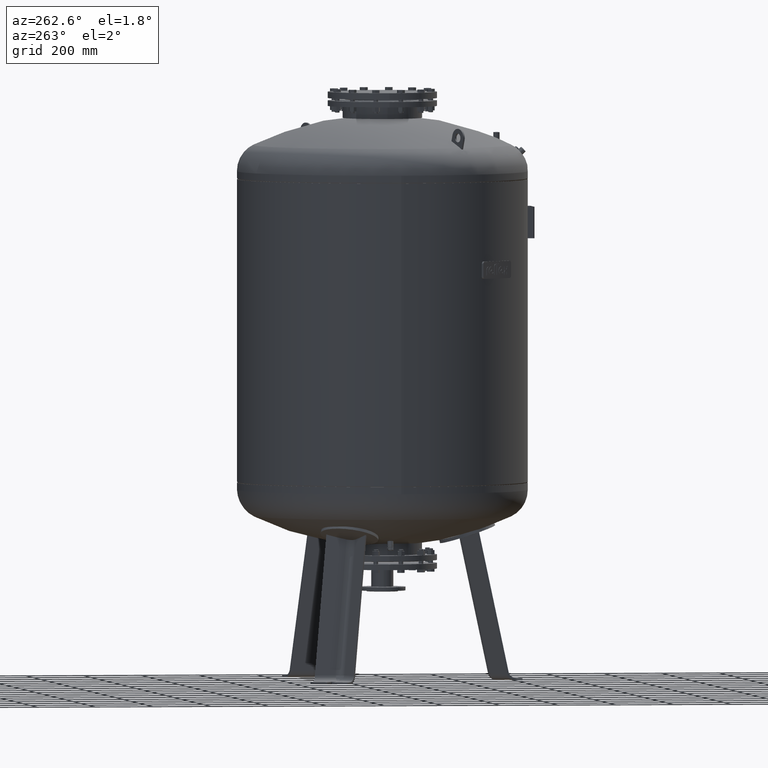
[diagram: clean part render]
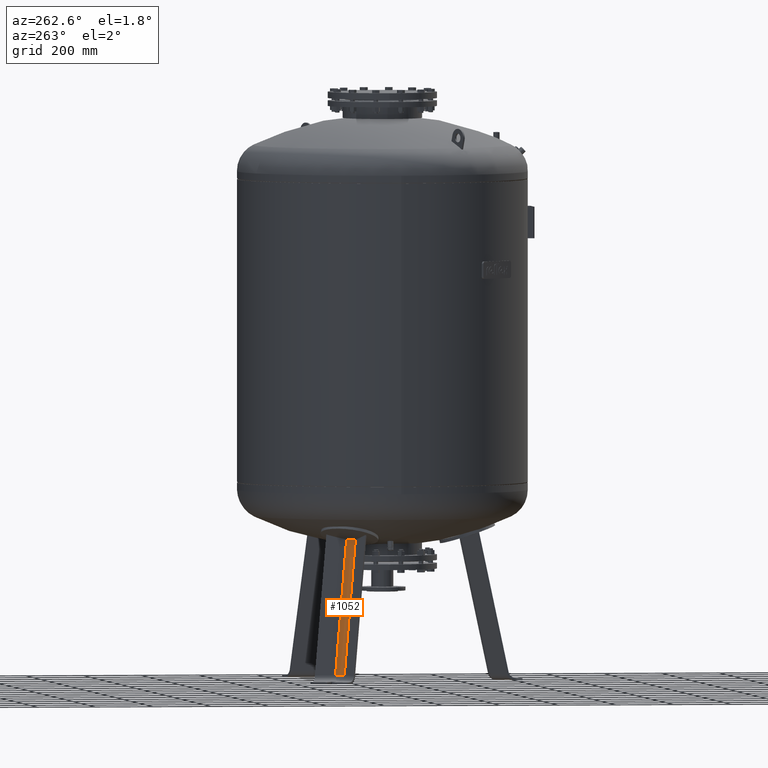
[diagram: same view with one face highlighted and labeled with its STEP entity id]
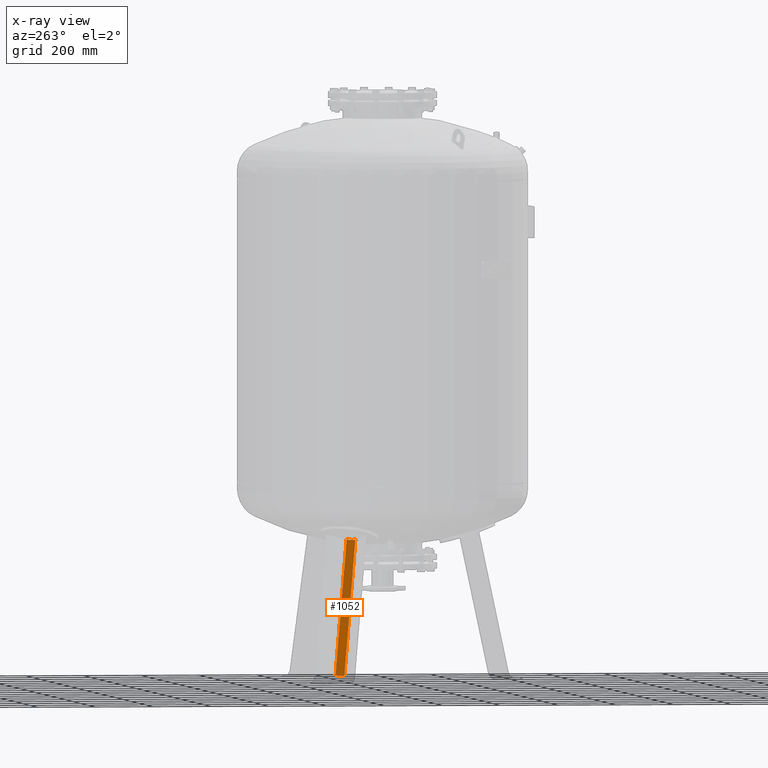
[diagram: x-ray of the same camera — body ghosted, the highlighted face saturated]
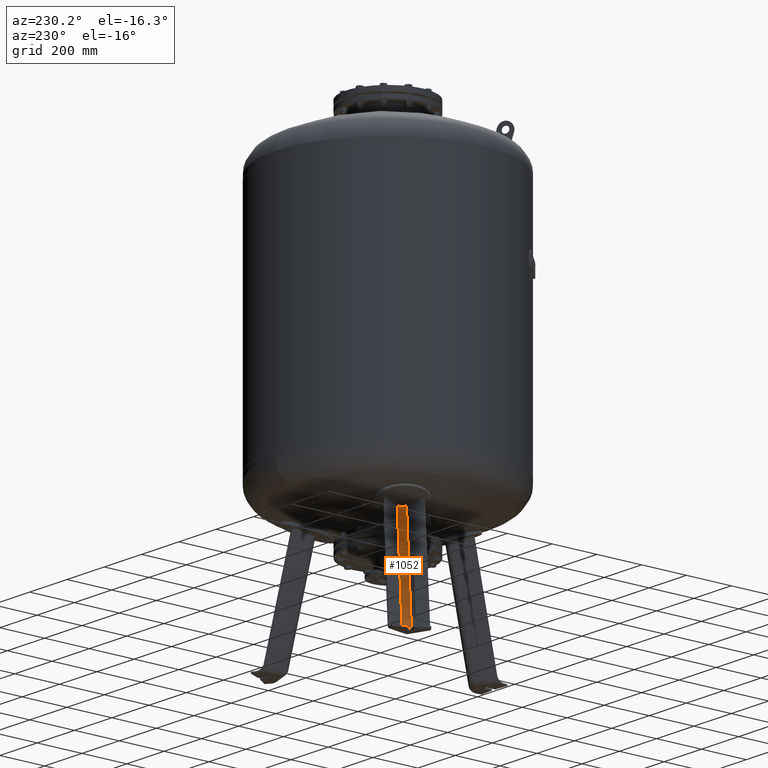
[diagram: same view with one face highlighted and labeled with its STEP entity id]
A machine part, auxiliary view. The second image highlights one B-rep face of the part: STEP entity #1052.
The next image is the same camera in x-ray: the body ghosted, the highlighted face saturated — about 0% of this face is hidden behind the body in this view.
A second angle (auxiliary view) of the same face is appended — the face is thin or edge-on in the first view.
In plain terms, the highlighted cylindrical surface (edge-blend (fillet) strip) has radius 25 mm, axis along (0.1801, -0.104, 0.9781).
Its self-contained STEP definition (entity closure, byte-faithful):
#202=CARTESIAN_POINT('',(-322.896399860520090,186.424323379832520,25.802207729556009));
#203=VERTEX_POINT('',#202);
#213=CARTESIAN_POINT('',(-319.830394192792940,203.286932639186150,27.029948423057292));
#214=VERTEX_POINT('',#213);
#215=CARTESIAN_POINT('',(-344.073916632676910,198.651168389005020,30.999999999999996));
#216=DIRECTION('',(0.180056805991956,-0.103955845408880,0.978147600733806));
#217=DIRECTION('',(0.847100670886274,-0.489073800366903,-0.207911690817760));
#218=AXIS2_PLACEMENT_3D('',#215,#216,#217);
#219=CIRCLE('',#218,24.999999999999996);
#220=EDGE_CURVE('',#203,#214,#219,.T.);
#512=CARTESIAN_POINT('',(-335.966845019347490,175.337779953756860,27.029948423057284));
#513=VERTEX_POINT('',#512);
#602=CARTESIAN_POINT('',(-344.073916632676910,198.651168389005020,30.999999999999996));
#603=DIRECTION('',(0.180056805991956,-0.103955845408880,0.978147600733806));
#604=DIRECTION('',(0.847100670886274,-0.489073800366903,-0.207911690817760));
#605=AXIS2_PLACEMENT_3D('',#602,#603,#604);
#606=CIRCLE('',#605,24.999999999999996);
#607=EDGE_CURVE('',#513,#203,#606,.T.);
#793=CARTESIAN_POINT('',(-234.534818756953200,154.041509200619970,490.392952149244080));
#794=VERTEX_POINT('',#793);
#802=CARTESIAN_POINT('',(-250.671269583507720,126.092356515190720,490.392952149244080));
#803=VERTEX_POINT('',#802);
#804=CARTESIAN_POINT('',(-250.671269583507720,126.092356515190720,490.392952149244080));
#805=CARTESIAN_POINT('',(-250.574512849431670,126.129635010904860,490.371623892671440));
#806=CARTESIAN_POINT('',(-250.477803760298120,126.167593311050540,490.350420493468330));
#807=CARTESIAN_POINT('',(-249.646487369690620,126.499951411326890,490.169148601515130));
#808=CARTESIAN_POINT('',(-248.915641114720190,126.833074850677970,490.016489016976440));
#809=CARTESIAN_POINT('',(-247.476615436054400,127.576101824324410,489.730169035990510));
#810=CARTESIAN_POINT('',(-246.768360453599570,127.986039684162510,489.596492822823280));
#811=CARTESIAN_POINT('',(-245.388021940892060,128.877791467814290,489.351162059827520));
#812=CARTESIAN_POINT('',(-244.715937417979970,129.359603697571540,489.239506937421310));
#813=CARTESIAN_POINT('',(-243.419980240353990,130.387381409492890,489.040364541220580));
#814=CARTESIAN_POINT('',(-242.795522354690630,130.933811219726380,488.952787360993230));
#815=CARTESIAN_POINT('',(-241.604085802151560,132.081845711851540,488.802955942629920));
#816=CARTESIAN_POINT('',(-241.037108603185230,132.683452004905400,488.740702376916890));
#817=CARTESIAN_POINT('',(-239.968940744643450,133.929592684317130,488.641866930361120));
#818=CARTESIAN_POINT('',(-239.467698051638340,134.574194484351320,488.605281330539300));
#819=CARTESIAN_POINT('',(-238.536808190789320,135.892067462273190,488.557093949216380));
#820=CARTESIAN_POINT('',(-238.107165363452170,136.565341769891430,488.545493912186370));
#821=CARTESIAN_POINT('',(-237.714901647204130,137.244762456398800,488.545493912186370));
#822=CARTESIAN_POINT('',(-237.322637930956090,137.924183142906200,488.545493912186370));
#823=CARTESIAN_POINT('',(-236.954386690511880,138.632901899743080,488.557093949216380));
#824=CARTESIAN_POINT('',(-236.278520143095020,140.098012656324640,488.605281330539300));
#825=CARTESIAN_POINT('',(-235.970899955442750,140.854402461945480,488.641866930361120));
#826=CARTESIAN_POINT('',(-235.425794399653880,142.402533302654550,488.740702376916890));
#827=CARTESIAN_POINT('',(-235.188276666275870,143.194353106852840,488.802955942629920));
#828=CARTESIAN_POINT('',(-234.789767907944220,144.800184674411640,488.952787360993230));
#829=CARTESIAN_POINT('',(-234.628774753728610,145.614195972106390,489.040364541220580));
#830=CARTESIAN_POINT('',(-234.386671734574240,147.250416666107920,489.239506937421370));
#831=CARTESIAN_POINT('',(-234.305452365206490,148.073365051318770,489.351162059827520));
#832=CARTESIAN_POINT('',(-234.223341923047710,149.714649160971390,489.596492822823280));
#833=CARTESIAN_POINT('',(-234.222452813682340,150.532984898053170,489.730169035990630));
#834=CARTESIAN_POINT('',(-234.298485418140270,152.150731179299070,490.016489016976440));
#835=CARTESIAN_POINT('',(-234.375415184551600,152.950224322039820,490.169148601515020));
#836=CARTESIAN_POINT('',(-234.503242821862470,153.836344485026470,490.350420493468220));
#837=CARTESIAN_POINT('',(-234.518724514218490,153.939076163065810,490.371623892671440));
#838=CARTESIAN_POINT('',(-234.534818756953200,154.041509200619970,490.392952149244080));
#839=B_SPLINE_CURVE_WITH_KNOTS('',3,(#804,#805,#806,#807,#808,#809,#810,#811,#812,#813,#814,#815,#816,#817,#818,#819,#820,#821,#822,#823,#824,#825,#826,#827,#828,#829,#830,#831,#832,#833,#834,#835,#836,#837,#838),.UNSPECIFIED.,.F.,.U.,(4,2,2,2,2,2,2,2,3,2,2,2,2,2,2,2,4),(-16.784681571035506,-16.475076082417758,-14.121493784929527,-11.767911487441268,-9.414329189953008,-7.060746892464749,-4.707164594976490,-2.353582297488259,0.0,2.353582297488253,4.707164594976506,7.060746892464759,9.414329189953012,11.767911487441264,14.121493784929518,16.475076082417772,16.784681571035524),.UNSPECIFIED.);
#840=EDGE_CURVE('',#803,#794,#839,.T.);
#971=CARTESIAN_POINT('',(-335.966845019347490,175.337779953756860,27.029948423057284));
#972=DIRECTION('',(0.180056805991956,-0.103955845408880,0.978147600733805));
#973=VECTOR('',#972,473.714808867876630);
#974=LINE('',#971,#973);
#975=EDGE_CURVE('',#513,#803,#974,.T.);
#1035=CARTESIAN_POINT('',(-358.492644303445100,206.975824691094970,-47.328857379743425));
#1036=DIRECTION('',(0.180056805991956,-0.103955845408880,0.978147600733806));
#1037=DIRECTION('',(0.847100670886274,-0.489073800366903,-0.207911690817760));
#1038=AXIS2_PLACEMENT_3D('',#1035,#1036,#1037);
#1039=CYLINDRICAL_SURFACE('',#1038,25.000000000000004);
#1040=ORIENTED_EDGE('',*,*,#975,.T.);
#1041=ORIENTED_EDGE('',*,*,#840,.T.);
#1042=CARTESIAN_POINT('',(-234.534818756953200,154.041509200619970,490.392952149244080));
#1043=DIRECTION('',(-0.180056805991956,0.103955845408880,-0.978147600733805));
#1044=VECTOR('',#1043,473.714808867876630);
#1045=LINE('',#1042,#1044);
#1046=EDGE_CURVE('',#794,#214,#1045,.T.);
#1047=ORIENTED_EDGE('',*,*,#1046,.T.);
#1048=ORIENTED_EDGE('',*,*,#220,.F.);
#1049=ORIENTED_EDGE('',*,*,#607,.F.);
#1050=EDGE_LOOP('',(#1040,#1041,#1047,#1048,#1049));
#1051=FACE_OUTER_BOUND('',#1050,.T.);
#1052=ADVANCED_FACE('',(#1051),#1039,.F.);